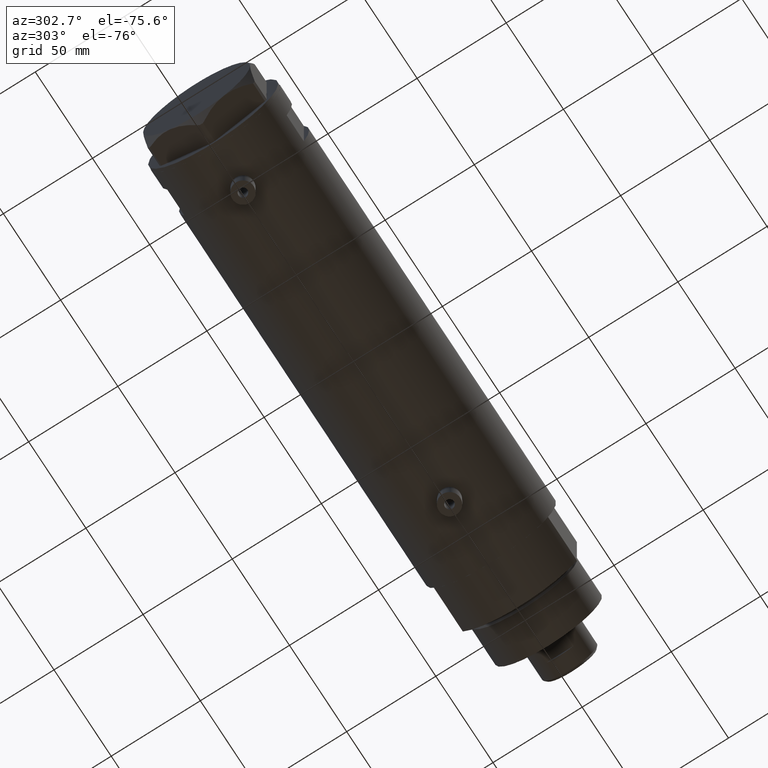
[diagram: clean part render]
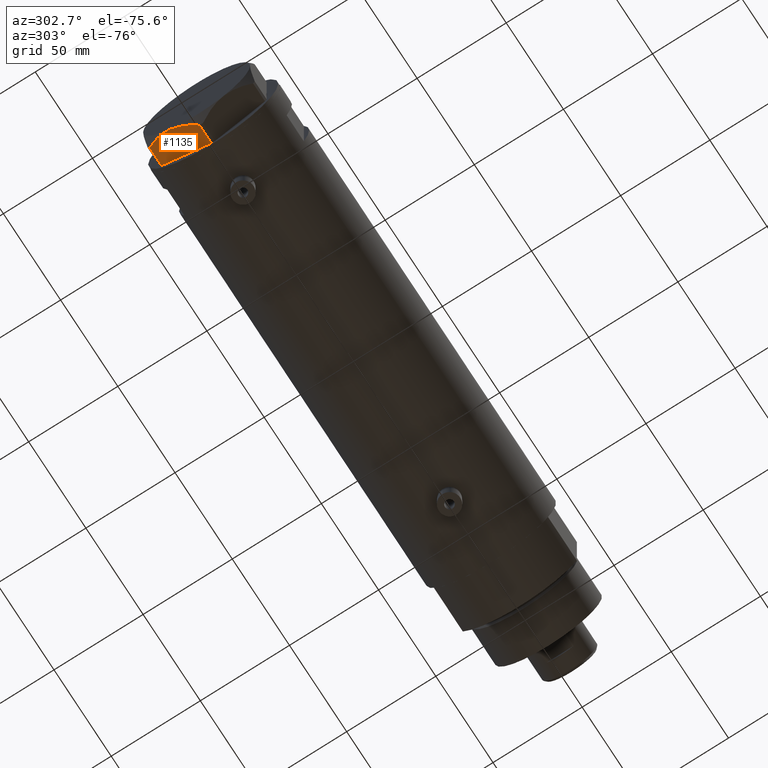
[diagram: same view with one face highlighted and labeled with its STEP entity id]
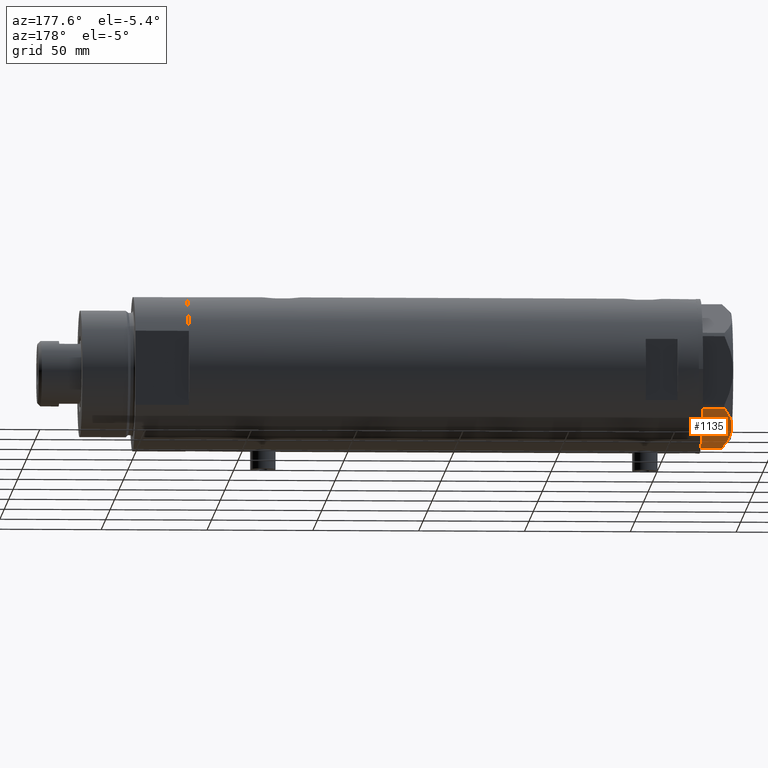
[diagram: same view with one face highlighted and labeled with its STEP entity id]
A machine part, auxiliary view. The second image highlights one B-rep face of the part: STEP entity #1135.
A second angle (auxiliary view) of the same face is appended — the face is thin or edge-on in the first view.
In plain terms, the highlighted planar face has unit normal (0, -0.5, 0.866).
Its self-contained STEP definition (entity closure, byte-faithful):
#136 = CARTESIAN_POINT ( 'NONE',  ( 12.56968319190193029, 27.38390617690464879, 14.50000000000000711 ) ) ;
#143 = LINE ( 'NONE', #512, #3276 ) ;
#217 = CARTESIAN_POINT ( 'NONE',  ( 6.639151835535789026, 30.80790005194015535, 12.99122625442314671 ) ) ;
#345 = EDGE_CURVE ( 'NONE', #1837, #567, #3268, .T. ) ;
#496 = CARTESIAN_POINT ( 'NONE',  ( 24.56959650245796567, 20.45575299680294634, 12.63511531451932690 ) ) ;
#512 = CARTESIAN_POINT ( 'NONE',  ( 0.9699484522385712904, 34.08101615137753981, 14.50000000000000000 ) ) ;
#533 = CARTESIAN_POINT ( 'NONE',  ( 0.9699484522385712904, 34.08101615137753981, 0.000000000000000000 ) ) ;
#567 = VERTEX_POINT ( 'NONE', #3330 ) ;
#600 = CARTESIAN_POINT ( 'NONE',  ( 7.227334865373877371, 30.46831242133036355, 13.19311392138218508 ) ) ;
#672 = PLANE ( 'NONE',  #3958 ) ;
#711 = VECTOR ( 'NONE', #1804, 1000.000000000000000 ) ;
#855 = DIRECTION ( 'NONE',  ( -0.8660254037844387076, 0.4999999999999997780, 0.000000000000000000 ) ) ;
#863 = ORIENTED_EDGE ( 'NONE', *, *, #4670, .F. ) ;
#895 = CARTESIAN_POINT ( 'NONE',  ( 21.07077273125423034, 22.47579984295449407, 13.71922620632299505 ) ) ;
#939 = CARTESIAN_POINT ( 'NONE',  ( 17.45962150578836258, 24.56069897506165489, 14.37423503257921986 ) ) ;
#1043 = CARTESIAN_POINT ( 'NONE',  ( 29.03005154776155194, 17.88050807568870226, 10.40518423703596085 ) ) ;
#1135 = ADVANCED_FACE ( 'NONE', ( #4705 ), #672, .F. ) ;
#1229 = CARTESIAN_POINT ( 'NONE',  ( 16.22616138060133295, 25.27283751037305493, 14.47500996539161555 ) ) ;
#1255 = CARTESIAN_POINT ( 'NONE',  ( 10.17780078270602040, 28.76486012972386064, 14.10092492974158773 ) ) ;
#1363 = ORIENTED_EDGE ( 'NONE', *, *, #345, .T. ) ;
#1397 = CARTESIAN_POINT ( 'NONE',  ( 14.99999999999999467, 25.98076211353316367, 14.50000000000000000 ) ) ;
#1550 = ORIENTED_EDGE ( 'NONE', *, *, #4010, .F. ) ;
#1617 = CARTESIAN_POINT ( 'NONE',  ( 4.902385341345770975, 31.81062265488028018, 12.31959434659136576 ) ) ;
#1652 = ORIENTED_EDGE ( 'NONE', *, *, #3145, .T. ) ;
#1699 = DIRECTION ( 'NONE',  ( -0.4999999999999998335, -0.8660254037844388186, 0.000000000000000000 ) ) ;
#1804 = DIRECTION ( 'NONE',  ( 0.000000000000000000, 0.000000000000000000, -1.000000000000000000 ) ) ;
#1837 = VERTEX_POINT ( 'NONE', #1043 ) ;
#1903 = B_SPLINE_CURVE_WITH_KNOTS ( 'NONE', 3,
 ( #4249, #4516, #496, #895, #2373, #4540, #939, #1229, #1983, #3880 ),
 .UNSPECIFIED., .F., .F.,
 ( 4, 2, 2, 2, 4 ),
 ( 0.001230196178133409956, 0.009592363676680764825, 0.01377344742595444649, 0.01586398930059127951, 0.01795453117522811601 ),
 .UNSPECIFIED. ) ;
#1983 = CARTESIAN_POINT ( 'NONE',  ( 15.61187731150015878, 25.62749458302751293, 14.50000000000000355 ) ) ;
#2373 = CARTESIAN_POINT ( 'NONE',  ( 19.88494945387372681, 23.16043523136144699, 14.00566141361760941 ) ) ;
#2390 = VERTEX_POINT ( 'NONE', #2495 ) ;
#2459 = CARTESIAN_POINT ( 'NONE',  ( 14.99999999999999467, 25.98076211353316367, 14.50000000000000000 ) ) ;
#2495 = CARTESIAN_POINT ( 'NONE',  ( 0.9699484522423541533, 34.08101615137535845, 10.40518423703812090 ) ) ;
#2524 = B_SPLINE_CURVE_WITH_KNOTS ( 'NONE', 3,
 ( #2459, #136, #1255, #600, #217, #4233, #1617, #3837, #4615, #3169 ),
 .UNSPECIFIED., .F., .F.,
 ( 4, 2, 2, 2, 4 ),
 ( 0.01795453117522811601, 0.02625795893839555362, 0.02833381587918740868, 0.03040967281997927762, 0.03456138670156298776 ),
 .UNSPECIFIED. ) ;
#2958 = LINE ( 'NONE', #4114, #3503 ) ;
#3094 = DIRECTION ( 'NONE',  ( 0.000000000000000000, 0.000000000000000000, 1.000000000000000000 ) ) ;
#3145 = EDGE_CURVE ( 'NONE', #567, #4465, #2958, .T. ) ;
#3169 = CARTESIAN_POINT ( 'NONE',  ( 0.9699484522423541533, 34.08101615137535845, 10.40518423703812090 ) ) ;
#3170 = DIRECTION ( 'NONE',  ( 0.8660254037844387076, -0.4999999999999997780, 0.000000000000000000 ) ) ;
#3268 = LINE ( 'NONE', #3622, #711 ) ;
#3276 = VECTOR ( 'NONE', #3094, 1000.000000000000000 ) ;
#3330 = CARTESIAN_POINT ( 'NONE',  ( 29.03005154776139207, 17.88050807568879463, 0.000000000000000000 ) ) ;
#3483 = ORIENTED_EDGE ( 'NONE', *, *, #4463, .T. ) ;
#3503 = VECTOR ( 'NONE', #855, 1000.000000000000227 ) ;
#3622 = CARTESIAN_POINT ( 'NONE',  ( 29.03005154776139207, 17.88050807568879463, 14.50000000000000000 ) ) ;
#3734 = VERTEX_POINT ( 'NONE', #1397 ) ;
#3837 = CARTESIAN_POINT ( 'NONE',  ( 3.192653970408704023, 32.79773652213274460, 11.56973717813891156 ) ) ;
#3880 = CARTESIAN_POINT ( 'NONE',  ( 14.99999999999999467, 25.98076211353316367, 14.50000000000000000 ) ) ;
#3958 = AXIS2_PLACEMENT_3D ( 'NONE', #4289, #1699, #3170 ) ;
#4010 = EDGE_CURVE ( 'NONE', #1837, #3734, #1903, .T. ) ;
#4114 = CARTESIAN_POINT ( 'NONE',  ( 29.99999999999999289, 17.32050807568878170, 0.000000000000000000 ) ) ;
#4233 = CARTESIAN_POINT ( 'NONE',  ( 5.477433827014328571, 31.47861825688246640, 12.55468001512311105 ) ) ;
#4249 = CARTESIAN_POINT ( 'NONE',  ( 29.03005154776155194, 17.88050807568870226, 10.40518423703596085 ) ) ;
#4289 = CARTESIAN_POINT ( 'NONE',  ( 29.99999999999999289, 17.32050807568878170, 14.50000000000000000 ) ) ;
#4463 = EDGE_CURVE ( 'NONE', #4465, #2390, #143, .T. ) ;
#4465 = VERTEX_POINT ( 'NONE', #533 ) ;
#4516 = CARTESIAN_POINT ( 'NONE',  ( 26.82462797925471065, 19.15380996664327284, 11.61522964162834981 ) ) ;
#4540 = CARTESIAN_POINT ( 'NONE',  ( 18.07068105770096267, 24.20790357827400996, 14.29910535634586743 ) ) ;
#4615 = CARTESIAN_POINT ( 'NONE',  ( 2.073315687469442281, 33.44398678110199086, 11.01056656432865388 ) ) ;
#4621 = EDGE_LOOP ( 'NONE', ( #1550, #1363, #1652, #3483, #863 ) ) ;
#4670 = EDGE_CURVE ( 'NONE', #3734, #2390, #2524, .T. ) ;
#4705 = FACE_OUTER_BOUND ( 'NONE', #4621, .T. ) ;